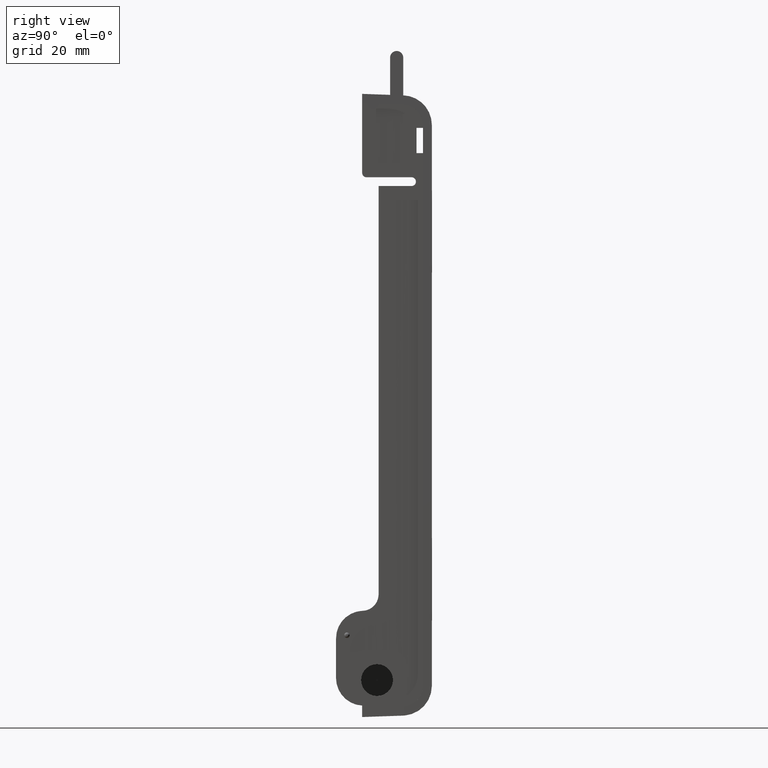
[diagram: clean part render]
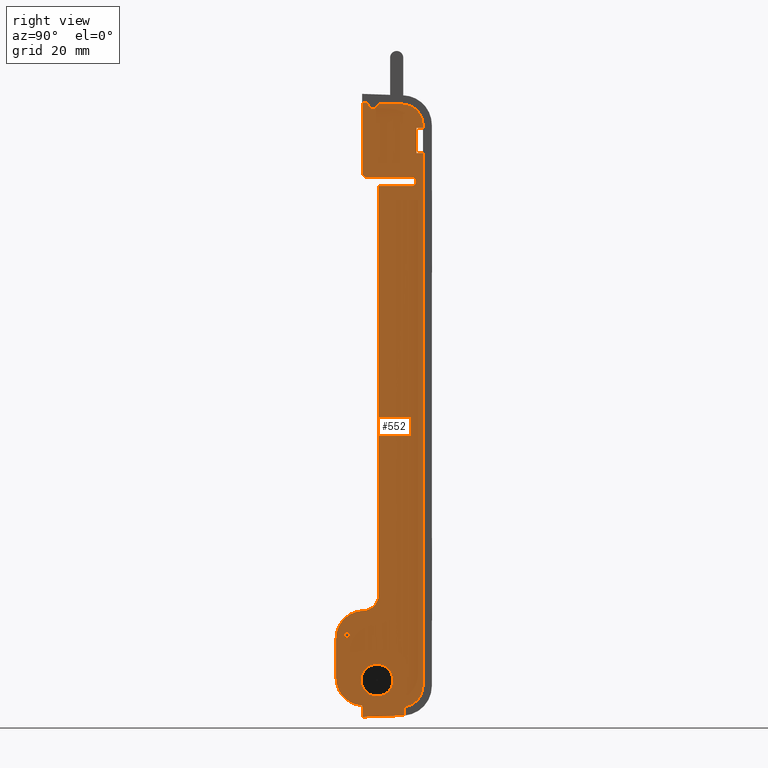
[diagram: same view with one face highlighted and labeled with its STEP entity id]
A machine part, right view. The second image highlights one B-rep face of the part: STEP entity #552.
In plain terms, the highlighted planar face has unit normal (0.9998, -0.0175, 0).
Its self-contained STEP definition (entity closure, byte-faithful):
#53 = EDGE_CURVE ( 'NONE', #3146, #3772, #3099, .T. ) ;
#55 = LINE ( 'NONE', #3210, #4360 ) ;
#107 = CARTESIAN_POINT ( 'NONE',  ( 1.219902875335753000, 0.3716309043734744600, 2.746973599308459900 ) ) ;
#130 = EDGE_CURVE ( 'NONE', #2547, #2912, #1184, .T. ) ;
#169 = CARTESIAN_POINT ( 'NONE',  ( 1.221791114285915000, 0.4798080413779664000, 2.743195970442849200 ) ) ;
#182 = ORIENTED_EDGE ( 'NONE', *, *, #513, .T. ) ;
#183 = EDGE_CURVE ( 'NONE', #3276, #1245, #1953, .T. ) ;
#184 = CARTESIAN_POINT ( 'NONE',  ( 1.223103594805742500, 0.5550000000000002700, 2.665332417936446600 ) ) ;
#241 = LINE ( 'NONE', #1715, #2268 ) ;
#265 = FACE_OUTER_BOUND ( 'NONE', #4027, .T. ) ;
#282 =( BOUNDED_CURVE ( )  B_SPLINE_CURVE ( 3, ( #1527, #1565, #1584, #1590 ),
 .UNSPECIFIED., .F., .F. ) 
 B_SPLINE_CURVE_WITH_KNOTS ( ( 4, 4 ),
 ( 3.141592653589793100, 4.712388980384690600 ),
 .UNSPECIFIED. ) 
 CURVE ( )  GEOMETRIC_REPRESENTATION_ITEM ( )  RATIONAL_B_SPLINE_CURVE ( ( 1.000000000000000000, 0.8047378541243648300, 0.8047378541243648300, 1.000000000000000000 ) ) 
 REPRESENTATION_ITEM ( '' )  );
#286 = EDGE_CURVE ( 'NONE', #3835, #1368, #3904, .T. ) ;
#288 =( BOUNDED_CURVE ( )  B_SPLINE_CURVE ( 3, ( #928, #923, #5070, #958 ),
 .UNSPECIFIED., .F., .F. ) 
 B_SPLINE_CURVE_WITH_KNOTS ( ( 4, 4 ),
 ( 1.683007364608639000, 3.141592653589793100 ),
 .UNSPECIFIED. ) 
 CURVE ( )  GEOMETRIC_REPRESENTATION_ITEM ( )  RATIONAL_B_SPLINE_CURVE ( ( 1.000000000000000000, 0.8304306198608297800, 0.8304306198608297800, 1.000000000000000000 ) ) 
 REPRESENTATION_ITEM ( '' )  );
#335 = ORIENTED_EDGE ( 'NONE', *, *, #362, .F. ) ;
#362 = EDGE_CURVE ( 'NONE', #1286, #1435, #3037, .T. ) ;
#421 = VECTOR ( 'NONE', #2385, 39.37007874015748100 ) ;
#461 = CARTESIAN_POINT ( 'NONE',  ( 1.209261381481953900, -0.2380198702046420500, -2.121865569165898100 ) ) ;
#507 = VECTOR ( 'NONE', #1657, 39.37007874015748100 ) ;
#513 = EDGE_CURVE ( 'NONE', #3056, #4869, #3879, .T. ) ;
#552 = ADVANCED_FACE ( 'NONE', ( #3954, #265, #1344 ), #4275, .T. ) ;
#586 = VECTOR ( 'NONE', #2623, 39.37007874015748100 ) ;
#589 = DIRECTION ( 'NONE',  ( -1.398599473538766500E-018, -8.012571017583610100E-017, 1.000000000000000000 ) ) ;
#593 = VECTOR ( 'NONE', #2480, 39.37007874015748100 ) ;
#643 = CARTESIAN_POINT ( 'NONE',  ( 1.210989779745559300, -0.1389999999999999300, -2.119325282124625800 ) ) ;
#662 = VERTEX_POINT ( 'NONE', #4088 ) ;
#741 = ORIENTED_EDGE ( 'NONE', *, *, #5053, .T. ) ;
#750 = VECTOR ( 'NONE', #4350, 39.37007874015748100 ) ;
#766 = AXIS2_PLACEMENT_3D ( 'NONE', #4183, #4173, #4169 ) ;
#788 = AXIS2_PLACEMENT_3D ( 'NONE', #4292, #4289, #4287 ) ;
#789 =( BOUNDED_CURVE ( )  B_SPLINE_CURVE ( 3, ( #2421, #1995, #1911, #1842 ),
 .UNSPECIFIED., .F., .T. ) 
 B_SPLINE_CURVE_WITH_KNOTS ( ( 4, 4 ),
 ( 1.570796326794896800, 4.712388980384689700 ),
 .UNSPECIFIED. ) 
 CURVE ( )  GEOMETRIC_REPRESENTATION_ITEM ( )  RATIONAL_B_SPLINE_CURVE ( ( 1.000000000000000000, 0.3333333333333333700, 0.3333333333333333700, 1.000000000000000000 ) ) 
 REPRESENTATION_ITEM ( '' )  );
#803 = ORIENTED_EDGE ( 'NONE', *, *, #1499, .T. ) ;
#836 = EDGE_LOOP ( 'NONE', ( #4811, #741 ) ) ;
#842 = CARTESIAN_POINT ( 'NONE',  ( 1.213705238755596700, 0.01656854249492379200, 2.080000000000000100 ) ) ;
#858 = CARTESIAN_POINT ( 'NONE',  ( 1.214114236367710400, 0.03999999999999998000, 2.080000000000000100 ) ) ;
#866 = VERTEX_POINT ( 'NONE', #3703 ) ;
#900 = CARTESIAN_POINT ( 'NONE',  ( 1.213416033770581500, -2.869525943294879000E-018, 2.096568542494923600 ) ) ;
#923 = CARTESIAN_POINT ( 'NONE',  ( 1.221921437397707200, 0.4872742474521393800, -2.734513426981884300 ) ) ;
#928 = CARTESIAN_POINT ( 'NONE',  ( 1.220158495678358900, 0.3862753839934151600, -2.745894421650813200 ) ) ;
#933 =( BOUNDED_CURVE ( )  B_SPLINE_CURVE ( 3, ( #3871, #3853, #3887, #3880 ),
 .UNSPECIFIED., .F., .F. ) 
 B_SPLINE_CURVE_WITH_KNOTS ( ( 4, 4 ),
 ( 4.712388980384689700, 7.853981633974482800 ),
 .UNSPECIFIED. ) 
 CURVE ( )  GEOMETRIC_REPRESENTATION_ITEM ( )  RATIONAL_B_SPLINE_CURVE ( ( 1.000000000000000000, 0.3333333333333333700, 0.3333333333333333700, 1.000000000000000000 ) ) 
 REPRESENTATION_ITEM ( '' )  );
#958 = CARTESIAN_POINT ( 'NONE',  ( 1.223103594805742500, 0.5550000000000008300, -2.557089342174827500 ) ) ;
#962 = ORIENTED_EDGE ( 'NONE', *, *, #4678, .T. ) ;
#1002 = CARTESIAN_POINT ( 'NONE',  ( 1.213416033770581700, 0.0000000000000000000, 2.120000000000000100 ) ) ;
#1023 = LINE ( 'NONE', #1723, #2398 ) ;
#1036 = DIRECTION ( 'NONE',  ( -0.01745240643728355000, -0.9998476951563912700, 6.069848711072945300E-016 ) ) ;
#1060 = EDGE_CURVE ( 'NONE', #1245, #4648, #55, .T. ) ;
#1074 = ORIENTED_EDGE ( 'NONE', *, *, #3209, .T. ) ;
#1078 = VECTOR ( 'NONE', #5199, 39.37007874015748100 ) ;
#1081 = CARTESIAN_POINT ( 'NONE',  ( 1.210989779745559300, -0.1389999999999999300, -2.069325282124626400 ) ) ;
#1096 = LINE ( 'NONE', #2635, #586 ) ;
#1098 = ORIENTED_EDGE ( 'NONE', *, *, #4600, .T. ) ;
#1100 = CARTESIAN_POINT ( 'NONE',  ( 1.210117026499148800, -0.1889999999999996100, -2.069325282124626400 ) ) ;
#1130 =( BOUNDED_CURVE ( )  B_SPLINE_CURVE ( 3, ( #3528, #3379, #3571, #3604 ),
 .UNSPECIFIED., .F., .F. ) 
 B_SPLINE_CURVE_WITH_KNOTS ( ( 4, 4 ),
 ( 1.570796326794896600, 4.712388980384689700 ),
 .UNSPECIFIED. ) 
 CURVE ( )  GEOMETRIC_REPRESENTATION_ITEM ( )  RATIONAL_B_SPLINE_CURVE ( ( 1.000000000000000000, 0.3333333333333333700, 0.3333333333333333700, 1.000000000000000000 ) ) 
 REPRESENTATION_ITEM ( '' )  );
#1184 = CIRCLE ( 'NONE', #1585, 0.2500000000000000600 ) ;
#1188 = CARTESIAN_POINT ( 'NONE',  ( 1.224499999999999900, 0.6350000000000000100, 2.080000000000000100 ) ) ;
#1237 = EDGE_CURVE ( 'NONE', #2841, #2120, #2931, .T. ) ;
#1245 = VERTEX_POINT ( 'NONE', #2620 ) ;
#1263 = ORIENTED_EDGE ( 'NONE', *, *, #286, .T. ) ;
#1264 = CARTESIAN_POINT ( 'NONE',  ( 1.210989779745559300, -0.1389999999999999300, -2.119325282124625800 ) ) ;
#1286 = VERTEX_POINT ( 'NONE', #2570 ) ;
#1295 = CARTESIAN_POINT ( 'NONE',  ( 1.210117026499148800, -0.1889999999999996100, -2.119325282124625800 ) ) ;
#1296 = DIRECTION ( 'NONE',  ( 0.01745240643728380000, 0.9998476951563912700, 0.0000000000000000000 ) ) ;
#1304 = DIRECTION ( 'NONE',  ( 0.9998476951563912700, -0.01745240643728355000, 0.0000000000000000000 ) ) ;
#1314 = CARTESIAN_POINT ( 'NONE',  ( 1.213624483091274800, 0.01194205358445574700, -2.121865569165898100 ) ) ;
#1315 = ORIENTED_EDGE ( 'NONE', *, *, #1060, .T. ) ;
#1344 = FACE_BOUND ( 'NONE', #4439, .T. ) ;
#1368 = VERTEX_POINT ( 'NONE', #1952 ) ;
#1426 =( BOUNDED_CURVE ( )  B_SPLINE_CURVE ( 3, ( #2090, #2085, #2125, #2136 ),
 .UNSPECIFIED., .F., .T. ) 
 B_SPLINE_CURVE_WITH_KNOTS ( ( 4, 4 ),
 ( 1.605702911834787000, 1.660074962351179900 ),
 .UNSPECIFIED. ) 
 CURVE ( )  GEOMETRIC_REPRESENTATION_ITEM ( )  RATIONAL_B_SPLINE_CURVE ( ( 1.000000000000000000, 0.9997536551831576200, 0.9997536551831576200, 1.000000000000000000 ) ) 
 REPRESENTATION_ITEM ( '' )  );
#1428 = VECTOR ( 'NONE', #3189, 39.37007874015748100 ) ;
#1434 =( BOUNDED_CURVE ( )  B_SPLINE_CURVE ( 3, ( #1002, #900, #842, #858 ),
 .UNSPECIFIED., .F., .F. ) 
 B_SPLINE_CURVE_WITH_KNOTS ( ( 4, 4 ),
 ( 3.141592653589793100, 4.712388980384689700 ),
 .UNSPECIFIED. ) 
 CURVE ( )  GEOMETRIC_REPRESENTATION_ITEM ( )  RATIONAL_B_SPLINE_CURVE ( ( 1.000000000000000000, 0.8047378541243649400, 0.8047378541243649400, 1.000000000000000000 ) ) 
 REPRESENTATION_ITEM ( '' )  );
#1435 = VERTEX_POINT ( 'NONE', #3510 ) ;
#1446 = VERTEX_POINT ( 'NONE', #4821 ) ;
#1484 = DIRECTION ( 'NONE',  ( -0.0006091728678747120400, -0.03489949022704185600, 0.9993906415863166300 ) ) ;
#1499 = EDGE_CURVE ( 'NONE', #2912, #3056, #1915, .T. ) ;
#1527 = CARTESIAN_POINT ( 'NONE',  ( 1.216034293509814300, 0.1499999999999999700, -1.722151044347924000 ) ) ;
#1551 = VERTEX_POINT ( 'NONE', #2863 ) ;
#1565 = CARTESIAN_POINT ( 'NONE',  ( 1.216034293509813400, 0.1500000000000000200, -1.810019009991960000 ) ) ;
#1584 = CARTESIAN_POINT ( 'NONE',  ( 1.214949774816007900, 0.08786796564403569200, -1.872151044347924100 ) ) ;
#1585 = AXIS2_PLACEMENT_3D ( 'NONE', #1314, #1304, #1296 ) ;
#1590 = CARTESIAN_POINT ( 'NONE',  ( 1.213416033770571500, 3.414809992080329000E-017, -1.872151044347923900 ) ) ;
#1596 = EDGE_CURVE ( 'NONE', #3071, #3276, #3787, .T. ) ;
#1637 = CARTESIAN_POINT ( 'NONE',  ( 1.220207332120088400, 0.3890732218662750800, -2.826014015622574100 ) ) ;
#1641 = EDGE_CURVE ( 'NONE', #2152, #3518, #1130, .T. ) ;
#1657 = DIRECTION ( 'NONE',  ( -0.0000000000000000000, -0.0000000000000000000, -1.000000000000000000 ) ) ;
#1675 = EDGE_CURVE ( 'NONE', #4987, #3835, #1096, .T. ) ;
#1715 = CARTESIAN_POINT ( 'NONE',  ( 1.223103594805742500, 0.5550000000000003800, 2.817825311372742700 ) ) ;
#1723 = CARTESIAN_POINT ( 'NONE',  ( 1.224499999999999900, 0.6349999999999995600, 1.999999999999999300 ) ) ;
#1752 = EDGE_CURVE ( 'NONE', #3772, #2547, #282, .T. ) ;
#1762 = CARTESIAN_POINT ( 'NONE',  ( 1.216034293509814300, 0.1499999999999999700, 2.817825311372742700 ) ) ;
#1775 = ORIENTED_EDGE ( 'NONE', *, *, #3944, .T. ) ;
#1790 = DIRECTION ( 'NONE',  ( -1.398599473538766500E-018, -8.012571017583610100E-017, 1.000000000000000000 ) ) ;
#1798 = CARTESIAN_POINT ( 'NONE',  ( 1.219902875335753000, 0.3716309043734744600, 2.746973599308459900 ) ) ;
#1806 = CARTESIAN_POINT ( 'NONE',  ( 1.221270812988279400, 0.4499999999999999000, 1.999999999999999300 ) ) ;
#1836 = VECTOR ( 'NONE', #1484, 39.37007874015748900 ) ;
#1842 = CARTESIAN_POINT ( 'NONE',  ( 1.215772467535891200, 0.1350000000000000900, -2.649490455874303800 ) ) ;
#1887 = VECTOR ( 'NONE', #2142, 39.37007874015748100 ) ;
#1911 = CARTESIAN_POINT ( 'NONE',  ( 1.220834436365074300, 0.4250000000000000400, -2.649490455874303800 ) ) ;
#1915 = LINE ( 'NONE', #461, #750 ) ;
#1952 = CARTESIAN_POINT ( 'NONE',  ( 1.213416033770581700, 0.0000000000000000000, 2.120000000000000100 ) ) ;
#1953 = LINE ( 'NONE', #2159, #1887 ) ;
#1958 = ORIENTED_EDGE ( 'NONE', *, *, #5073, .T. ) ;
#1995 = CARTESIAN_POINT ( 'NONE',  ( 1.220834436365074300, 0.4250000000000000400, -2.359490455874303700 ) ) ;
#2079 = VECTOR ( 'NONE', #4944, 39.37007874015748100 ) ;
#2085 = CARTESIAN_POINT ( 'NONE',  ( 1.220036983748362900, 0.3793139701862706700, -2.826754064282122500 ) ) ;
#2090 = CARTESIAN_POINT ( 'NONE',  ( 1.219951609174225300, 0.3744228641096763500, -2.826924865469984100 ) ) ;
#2120 = VERTEX_POINT ( 'NONE', #3742 ) ;
#2125 = CARTESIAN_POINT ( 'NONE',  ( 1.220122245734165600, 0.3841986260814653800, -2.826450372853509300 ) ) ;
#2136 = CARTESIAN_POINT ( 'NONE',  ( 1.220207332120088400, 0.3890732218662750800, -2.826014015622574100 ) ) ;
#2142 = DIRECTION ( 'NONE',  ( -0.0000000000000000000, -0.0000000000000000000, 1.000000000000000000 ) ) ;
#2148 = CARTESIAN_POINT ( 'NONE',  ( 1.215772467535891200, 0.1350000000000000900, -2.649490455874303800 ) ) ;
#2152 = VERTEX_POINT ( 'NONE', #4866 ) ;
#2159 = CARTESIAN_POINT ( 'NONE',  ( 1.222056290910049400, 0.4950000000000008800, 2.817825311372742700 ) ) ;
#2203 = VECTOR ( 'NONE', #589, 39.37007874015748100 ) ;
#2268 = VECTOR ( 'NONE', #1790, 39.37007874015748100 ) ;
#2277 = CARTESIAN_POINT ( 'NONE',  ( 1.220158495678358900, 0.3862753839934151600, -2.745894421650813200 ) ) ;
#2331 = EDGE_CURVE ( 'NONE', #3346, #3146, #1023, .T. ) ;
#2340 = ORIENTED_EDGE ( 'NONE', *, *, #3869, .T. ) ;
#2385 = DIRECTION ( 'NONE',  ( -0.0000000000000000000, -0.0000000000000000000, -1.000000000000000000 ) ) ;
#2398 = VECTOR ( 'NONE', #1036, 39.37007874015748100 ) ;
#2399 =( BOUNDED_CURVE ( )  B_SPLINE_CURVE ( 3, ( #1264, #1295, #1100, #1081 ),
 .UNSPECIFIED., .F., .F. ) 
 B_SPLINE_CURVE_WITH_KNOTS ( ( 4, 4 ),
 ( 4.712388980384689700, 7.853981633974482800 ),
 .UNSPECIFIED. ) 
 CURVE ( )  GEOMETRIC_REPRESENTATION_ITEM ( )  RATIONAL_B_SPLINE_CURVE ( ( 1.000000000000000000, 0.3333333333333333700, 0.3333333333333333700, 1.000000000000000000 ) ) 
 REPRESENTATION_ITEM ( '' )  );
#2421 = CARTESIAN_POINT ( 'NONE',  ( 1.215772467535891200, 0.1350000000000000600, -2.359490455874303700 ) ) ;
#2480 = DIRECTION ( 'NONE',  ( 0.01745240643728355000, 0.9998476951563912700, -0.0000000000000000000 ) ) ;
#2547 = VERTEX_POINT ( 'NONE', #4099 ) ;
#2550 = EDGE_CURVE ( 'NONE', #1551, #3071, #4134, .T. ) ;
#2564 = ORIENTED_EDGE ( 'NONE', *, *, #53, .T. ) ;
#2570 = CARTESIAN_POINT ( 'NONE',  ( 1.219951609174225300, 0.3744228641096763500, -2.826924865469984100 ) ) ;
#2620 = CARTESIAN_POINT ( 'NONE',  ( 1.222056290910049400, 0.4950000000000008800, 2.529999999999999400 ) ) ;
#2623 = DIRECTION ( 'NONE',  ( -0.01744177813809451300, -0.9992388003036509800, 0.03489418781261099900 ) ) ;
#2630 = CARTESIAN_POINT ( 'NONE',  ( 1.215772467535891200, 0.1350000000000000600, -2.359490455874303700 ) ) ;
#2634 = CARTESIAN_POINT ( 'NONE',  ( 1.215772467535891200, 0.1350000000000000900, -2.649490455874303800 ) ) ;
#2635 = CARTESIAN_POINT ( 'NONE',  ( 1.224451280987122600, 0.6322088896215752900, 2.737874015550988200 ) ) ;
#2653 = ORIENTED_EDGE ( 'NONE', *, *, #1596, .T. ) ;
#2667 = CARTESIAN_POINT ( 'NONE',  ( 1.210710498706707900, -0.1549999999999999200, -2.359490455874303700 ) ) ;
#2685 = CARTESIAN_POINT ( 'NONE',  ( 1.210710498706707900, -0.1549999999999998600, -2.649490455874303800 ) ) ;
#2768 = CARTESIAN_POINT ( 'NONE',  ( 1.222056290910049600, 0.4950000000000008800, 2.299999999999999800 ) ) ;
#2783 = VERTEX_POINT ( 'NONE', #2277 ) ;
#2841 = VERTEX_POINT ( 'NONE', #2148 ) ;
#2863 = CARTESIAN_POINT ( 'NONE',  ( 1.223103594805742500, 0.5550000000000008300, -2.557089342174827500 ) ) ;
#2883 = ORIENTED_EDGE ( 'NONE', *, *, #1237, .T. ) ;
#2912 = VERTEX_POINT ( 'NONE', #5100 ) ;
#2931 =( BOUNDED_CURVE ( )  B_SPLINE_CURVE ( 3, ( #2634, #2685, #2667, #2630 ),
 .UNSPECIFIED., .F., .F. ) 
 B_SPLINE_CURVE_WITH_KNOTS ( ( 4, 4 ),
 ( 4.712388980384689700, 7.853981633974482800 ),
 .UNSPECIFIED. ) 
 CURVE ( )  GEOMETRIC_REPRESENTATION_ITEM ( )  RATIONAL_B_SPLINE_CURVE ( ( 1.000000000000000000, 0.3333333333333333700, 0.3333333333333333700, 1.000000000000000000 ) ) 
 REPRESENTATION_ITEM ( '' )  );
#3037 = LINE ( 'NONE', #4896, #2079 ) ;
#3056 = VERTEX_POINT ( 'NONE', #3627 ) ;
#3071 = VERTEX_POINT ( 'NONE', #3949 ) ;
#3099 = LINE ( 'NONE', #1762, #507 ) ;
#3146 = VERTEX_POINT ( 'NONE', #4697 ) ;
#3189 = DIRECTION ( 'NONE',  ( -0.01745240643728355000, -0.9998476951563912700, -0.0000000000000000000 ) ) ;
#3201 = DIRECTION ( 'NONE',  ( 0.01745240643728355000, 0.9998476951563912700, -0.0000000000000000000 ) ) ;
#3209 = EDGE_CURVE ( 'NONE', #1286, #4619, #1426, .T. ) ;
#3210 = CARTESIAN_POINT ( 'NONE',  ( 1.224499999999999900, 0.6350000000000000100, 2.529999999999999400 ) ) ;
#3221 = CARTESIAN_POINT ( 'NONE',  ( 1.224499999999999900, 0.6350000000000000100, 2.299999999999999800 ) ) ;
#3225 = LINE ( 'NONE', #4356, #1836 ) ;
#3234 = LINE ( 'NONE', #1188, #593 ) ;
#3248 = ORIENTED_EDGE ( 'NONE', *, *, #4763, .T. ) ;
#3276 = VERTEX_POINT ( 'NONE', #2768 ) ;
#3346 = VERTEX_POINT ( 'NONE', #1806 ) ;
#3379 = CARTESIAN_POINT ( 'NONE',  ( 1.211862532991970300, -0.08900000000000028700, -2.069325282124626400 ) ) ;
#3398 = CARTESIAN_POINT ( 'NONE',  ( 1.213416033770581700, 0.0000000000000000000, 2.817825311372742700 ) ) ;
#3510 = CARTESIAN_POINT ( 'NONE',  ( 1.213416033770581700, 1.137360203378288900E-032, -2.839999999999999900 ) ) ;
#3518 = VERTEX_POINT ( 'NONE', #643 ) ;
#3528 = CARTESIAN_POINT ( 'NONE',  ( 1.210989779745559300, -0.1389999999999999300, -2.069325282124626400 ) ) ;
#3541 = ORIENTED_EDGE ( 'NONE', *, *, #3785, .T. ) ;
#3571 = CARTESIAN_POINT ( 'NONE',  ( 1.211862532991970300, -0.08900000000000028700, -2.119325282124625800 ) ) ;
#3573 = ORIENTED_EDGE ( 'NONE', *, *, #3750, .T. ) ;
#3604 = CARTESIAN_POINT ( 'NONE',  ( 1.210989779745559300, -0.1389999999999999300, -2.119325282124625800 ) ) ;
#3625 = ORIENTED_EDGE ( 'NONE', *, *, #130, .T. ) ;
#3627 = CARTESIAN_POINT ( 'NONE',  ( 1.209261381481953700, -0.2380198702046421600, -2.485815342582709000 ) ) ;
#3703 = CARTESIAN_POINT ( 'NONE',  ( 1.221270812988279400, 0.4499999999999999000, 2.080000000000000100 ) ) ;
#3742 = CARTESIAN_POINT ( 'NONE',  ( 1.215772467535891200, 0.1350000000000000600, -2.359490455874303700 ) ) ;
#3750 = EDGE_CURVE ( 'NONE', #2783, #1551, #288, .T. ) ;
#3772 = VERTEX_POINT ( 'NONE', #4875 ) ;
#3785 = EDGE_CURVE ( 'NONE', #4619, #2783, #3225, .T. ) ;
#3787 = LINE ( 'NONE', #3221, #1428 ) ;
#3835 = VERTEX_POINT ( 'NONE', #4104 ) ;
#3853 = CARTESIAN_POINT ( 'NONE',  ( 1.222667218182536900, 0.5300000000000002500, 2.080000000000000100 ) ) ;
#3869 = EDGE_CURVE ( 'NONE', #4648, #662, #241, .T. ) ;
#3871 = CARTESIAN_POINT ( 'NONE',  ( 1.221270812988279400, 0.4499999999999999000, 2.080000000000000100 ) ) ;
#3879 = CIRCLE ( 'NONE', #788, 0.2500000000000000600 ) ;
#3880 = CARTESIAN_POINT ( 'NONE',  ( 1.221270812988279400, 0.4499999999999999000, 1.999999999999999300 ) ) ;
#3887 = CARTESIAN_POINT ( 'NONE',  ( 1.222667218182536900, 0.5300000000000002500, 2.000000000000000000 ) ) ;
#3904 = LINE ( 'NONE', #5212, #1078 ) ;
#3944 = EDGE_CURVE ( 'NONE', #2120, #2841, #789, .T. ) ;
#3949 = CARTESIAN_POINT ( 'NONE',  ( 1.223103594805742300, 0.5550000000000008300, 2.299999999999999800 ) ) ;
#3954 = FACE_BOUND ( 'NONE', #836, .T. ) ;
#4027 = EDGE_LOOP ( 'NONE', ( #1263, #1958, #1098, #962, #4614, #2564, #4561, #3625, #803, #182, #4877, #335, #1074, #3541, #3573, #4417, #2653, #4185, #1315, #2340, #3248, #4574 ) ) ;
#4088 = CARTESIAN_POINT ( 'NONE',  ( 1.223103594805742500, 0.5550000000000002700, 2.557089342174832000 ) ) ;
#4099 = CARTESIAN_POINT ( 'NONE',  ( 1.213416033770571500, 3.414809992080329000E-017, -1.872151044347923900 ) ) ;
#4104 = CARTESIAN_POINT ( 'NONE',  ( 1.213416033770581500, 6.830690708704198700E-017, 2.759951236456094700 ) ) ;
#4106 = CARTESIAN_POINT ( 'NONE',  ( 1.223103594805742500, 0.5550000000000003800, 2.817825311372742700 ) ) ;
#4134 = LINE ( 'NONE', #4106, #2203 ) ;
#4155 = EDGE_CURVE ( 'NONE', #4869, #1435, #4378, .T. ) ;
#4169 = DIRECTION ( 'NONE',  ( 0.01745240643728355000, 0.9998476951563912700, 0.0000000000000000000 ) ) ;
#4173 = DIRECTION ( 'NONE',  ( 0.9998476951563912700, -0.01745240643728355000, 0.0000000000000000000 ) ) ;
#4183 = CARTESIAN_POINT ( 'NONE',  ( 1.224499999999999900, 0.6350000000000000100, 2.817825311372742700 ) ) ;
#4185 = ORIENTED_EDGE ( 'NONE', *, *, #183, .T. ) ;
#4212 = CARTESIAN_POINT ( 'NONE',  ( 1.223103594805742500, 0.5550000000000002700, 2.557089342174832000 ) ) ;
#4275 = PLANE ( 'NONE',  #766 ) ;
#4287 = DIRECTION ( 'NONE',  ( 0.01745240643728380000, 0.9998476951563912700, 0.0000000000000000000 ) ) ;
#4289 = DIRECTION ( 'NONE',  ( 0.9998476951563912700, -0.01745240643728355000, 0.0000000000000000000 ) ) ;
#4292 = CARTESIAN_POINT ( 'NONE',  ( 1.213624483091274800, 0.01194205358445575600, -2.485815342582709000 ) ) ;
#4350 = DIRECTION ( 'NONE',  ( 0.0000000000000000000, 0.0000000000000000000, -1.000000000000000000 ) ) ;
#4356 = CARTESIAN_POINT ( 'NONE',  ( 1.220207173058240700, 0.3890641092191216000, -2.825753063550608100 ) ) ;
#4360 = VECTOR ( 'NONE', #3201, 39.37007874015748100 ) ;
#4378 = LINE ( 'NONE', #3398, #421 ) ;
#4392 = CARTESIAN_POINT ( 'NONE',  ( 1.223103594805742300, 0.5550000000000008300, 2.529999999999999400 ) ) ;
#4401 =( BOUNDED_CURVE ( )  B_SPLINE_CURVE ( 3, ( #4212, #184, #169, #107 ),
 .UNSPECIFIED., .F., .F. ) 
 B_SPLINE_CURVE_WITH_KNOTS ( ( 4, 4 ),
 ( 3.141592653589793100, 4.677482395344807000 ),
 .UNSPECIFIED. ) 
 CURVE ( )  GEOMETRIC_REPRESENTATION_ITEM ( )  RATIONAL_B_SPLINE_CURVE ( ( 1.000000000000000000, 0.8128932002257665000, 0.8128932002257665000, 1.000000000000000000 ) ) 
 REPRESENTATION_ITEM ( '' )  );
#4417 = ORIENTED_EDGE ( 'NONE', *, *, #2550, .T. ) ;
#4439 = EDGE_LOOP ( 'NONE', ( #1775, #2883 ) ) ;
#4561 = ORIENTED_EDGE ( 'NONE', *, *, #1752, .T. ) ;
#4574 = ORIENTED_EDGE ( 'NONE', *, *, #1675, .T. ) ;
#4600 = EDGE_CURVE ( 'NONE', #1446, #866, #3234, .T. ) ;
#4614 = ORIENTED_EDGE ( 'NONE', *, *, #2331, .T. ) ;
#4619 = VERTEX_POINT ( 'NONE', #1637 ) ;
#4648 = VERTEX_POINT ( 'NONE', #4392 ) ;
#4678 = EDGE_CURVE ( 'NONE', #866, #3346, #933, .T. ) ;
#4697 = CARTESIAN_POINT ( 'NONE',  ( 1.216034293509814300, 0.1499999999999999700, 2.000000000000000000 ) ) ;
#4763 = EDGE_CURVE ( 'NONE', #662, #4987, #4401, .T. ) ;
#4811 = ORIENTED_EDGE ( 'NONE', *, *, #1641, .T. ) ;
#4821 = CARTESIAN_POINT ( 'NONE',  ( 1.214114236367710400, 0.03999999999999998000, 2.080000000000000100 ) ) ;
#4831 = CARTESIAN_POINT ( 'NONE',  ( 1.213416033770581900, -1.195183497228115000E-016, -2.735529867400683400 ) ) ;
#4866 = CARTESIAN_POINT ( 'NONE',  ( 1.210989779745559300, -0.1389999999999999300, -2.069325282124626400 ) ) ;
#4869 = VERTEX_POINT ( 'NONE', #4831 ) ;
#4875 = CARTESIAN_POINT ( 'NONE',  ( 1.216034293509814300, 0.1499999999999999700, -1.722151044347924000 ) ) ;
#4877 = ORIENTED_EDGE ( 'NONE', *, *, #4155, .T. ) ;
#4896 = CARTESIAN_POINT ( 'NONE',  ( 1.213419405686291300, 0.0001931769216327548200, -2.839993254113248000 ) ) ;
#4944 = DIRECTION ( 'NONE',  ( -0.01744177813809451000, -0.9992388003036507500, -0.03489418781261791100 ) ) ;
#4987 = VERTEX_POINT ( 'NONE', #1798 ) ;
#5053 = EDGE_CURVE ( 'NONE', #3518, #2152, #2399, .T. ) ;
#5070 = CARTESIAN_POINT ( 'NONE',  ( 1.223103594805742500, 0.5550000000000011600, -2.658727413091231700 ) ) ;
#5073 = EDGE_CURVE ( 'NONE', #1368, #1446, #1434, .T. ) ;
#5100 = CARTESIAN_POINT ( 'NONE',  ( 1.209261381481953900, -0.2380198702046420500, -2.121865569165898100 ) ) ;
#5199 = DIRECTION ( 'NONE',  ( -0.0000000000000000000, -0.0000000000000000000, -1.000000000000000000 ) ) ;
#5212 = CARTESIAN_POINT ( 'NONE',  ( 1.213416033770581700, 0.0000000000000000000, 2.817825311372742700 ) ) ;